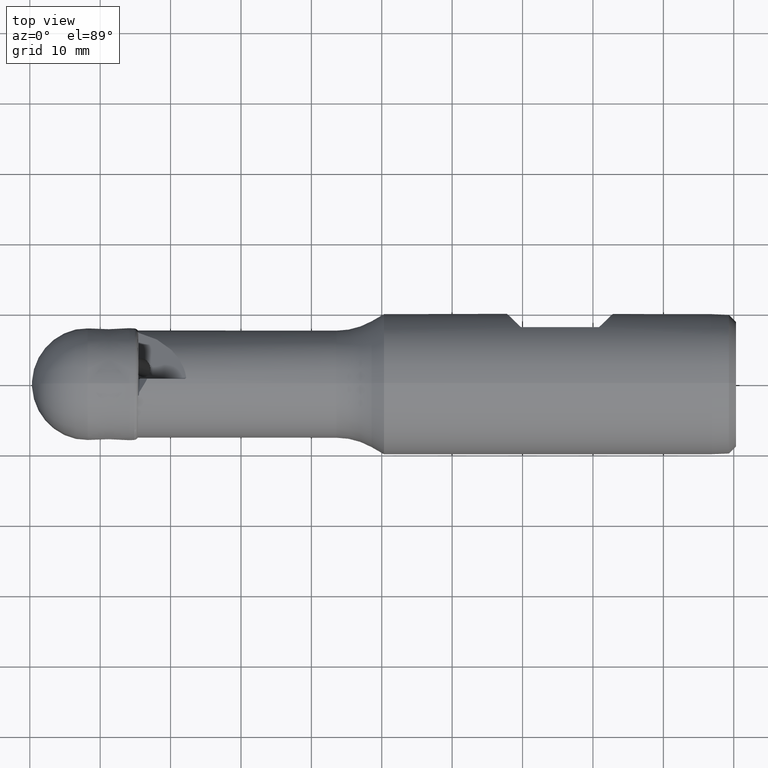
[diagram: clean part render]
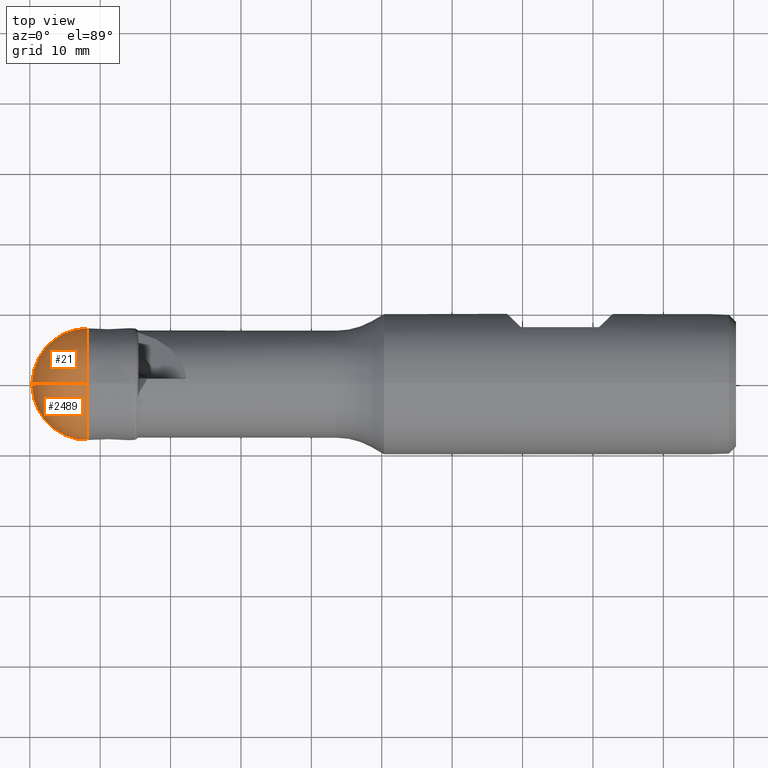
[diagram: same view with one multi-face feature highlighted, each face labeled with its STEP entity id]
A machine part, top view. The highlighted faces form ONE feature: a constant-radius fillet chain: 2 tangent blend faces with common blend radius 7.9786 mm. The faces share edges in the B-rep.
Their STEP definitions:
[1] entity #21 (Torus):
#21 = ADVANCED_FACE ( 'NONE', ( #3005 ), #2590, .T. ) ;
#231 = CARTESIAN_POINT ( 'NONE',  ( 8.282730966501290482, 0.0000000000000000000, 0.0000000000000000000 ) ) ;
#253 = DIRECTION ( 'NONE',  ( -1.000000000000000000, -0.0000000000000000000, -0.0000000000000000000 ) ) ;
#264 = DIRECTION ( 'NONE',  ( -0.0000000000000000000, 1.000000000000000000, 1.224646799147353207E-16 ) ) ;
#299 = AXIS2_PLACEMENT_3D ( 'NONE', #231, #2729, #2487 ) ;
#370 = CARTESIAN_POINT ( 'NONE',  ( 8.239061433749462537, 0.0000000000000000000, 7.964400446483643314 ) ) ;
#428 = DIRECTION ( 'NONE',  ( 0.0000000000000000000, 0.0000000000000000000, 1.000000000000000000 ) ) ;
#539 = CARTESIAN_POINT ( 'NONE',  ( 8.282730966501290482, 0.0000000000000000000, -0.01408443123342688688 ) ) ;
#591 = DIRECTION ( 'NONE',  ( 0.0000000000000000000, -1.000000000000000000, 0.0000000000000000000 ) ) ;
#605 = EDGE_CURVE ( 'NONE', #2495, #1144, #2393, .T. ) ;
#921 = AXIS2_PLACEMENT_3D ( 'NONE', #2552, #264, #1272 ) ;
#1066 = DIRECTION ( 'NONE',  ( 0.0000000000000000000, 0.0000000000000000000, -1.000000000000000000 ) ) ;
#1082 = AXIS2_PLACEMENT_3D ( 'NONE', #2416, #1935, #428 ) ;
#1144 = VERTEX_POINT ( 'NONE', #2737 ) ;
#1236 = CIRCLE ( 'NONE', #1082, 0.4457041864908126705 ) ;
#1269 = AXIS2_PLACEMENT_3D ( 'NONE', #2817, #253, #1486 ) ;
#1272 = DIRECTION ( 'NONE',  ( 0.0000000000000000000, -1.224646799147353207E-16, 1.000000000000000000 ) ) ;
#1280 = VERTEX_POINT ( 'NONE', #2522 ) ;
#1459 = VERTEX_POINT ( 'NONE', #2920 ) ;
#1486 = DIRECTION ( 'NONE',  ( 0.0000000000000000000, 0.0000000000000000000, 1.000000000000000000 ) ) ;
#1497 = AXIS2_PLACEMENT_3D ( 'NONE', #539, #591, #1066 ) ;
#1511 = ORIENTED_EDGE ( 'NONE', *, *, #2446, .F. ) ;
#1559 = EDGE_LOOP ( 'NONE', ( #3226, #2229, #2149, #1511 ) ) ;
#1703 = EDGE_CURVE ( 'NONE', #1144, #1280, #1970, .T. ) ;
#1935 = DIRECTION ( 'NONE',  ( -1.000000000000000000, -0.0000000000000000000, -0.0000000000000000000 ) ) ;
#1970 = CIRCLE ( 'NONE', #921, 7.978604387488499761 ) ;
#2149 = ORIENTED_EDGE ( 'NONE', *, *, #2338, .F. ) ;
#2229 = ORIENTED_EDGE ( 'NONE', *, *, #1703, .T. ) ;
#2338 = EDGE_CURVE ( 'NONE', #1459, #1280, #1236, .T. ) ;
#2393 = CIRCLE ( 'NONE', #1269, 7.964400446483643314 ) ;
#2416 = CARTESIAN_POINT ( 'NONE',  ( 0.3173858767351253607, 0.0000000000000000000, 0.0000000000000000000 ) ) ;
#2446 = EDGE_CURVE ( 'NONE', #2495, #1459, #2527, .T. ) ;
#2487 = DIRECTION ( 'NONE',  ( 0.0000000000000000000, 0.0000000000000000000, 1.000000000000000000 ) ) ;
#2495 = VERTEX_POINT ( 'NONE', #370 ) ;
#2522 = CARTESIAN_POINT ( 'NONE',  ( 0.3173858767351253607, 5.458302053525562359E-17, -0.4457041864908188877 ) ) ;
#2527 = CIRCLE ( 'NONE', #1497, 7.978604387488499761 ) ;
#2552 = CARTESIAN_POINT ( 'NONE',  ( 8.282730966501290482, -1.724845362782724401E-18, 0.01408443123342688688 ) ) ;
#2590 = TOROIDAL_SURFACE ( 'NONE', #299, -0.01408443123342688688, 7.978604387488499761 ) ;
#2729 = DIRECTION ( 'NONE',  ( -1.000000000000000000, -0.0000000000000000000, -0.0000000000000000000 ) ) ;
#2737 = CARTESIAN_POINT ( 'NONE',  ( 8.239061433749462537, 9.753577513913945879E-16, -7.964400446483643314 ) ) ;
#2817 = CARTESIAN_POINT ( 'NONE',  ( 8.239061433749462537, 0.0000000000000000000, 0.0000000000000000000 ) ) ;
#2920 = CARTESIAN_POINT ( 'NONE',  ( 0.3173858767351253607, 0.0000000000000000000, 0.4457041864908188877 ) ) ;
#3005 = FACE_OUTER_BOUND ( 'NONE', #1559, .T. ) ;
#3226 = ORIENTED_EDGE ( 'NONE', *, *, #605, .T. ) ;
[2] entity #2489 (Torus):
#206 = ORIENTED_EDGE ( 'NONE', *, *, #937, .F. ) ;
#264 = DIRECTION ( 'NONE',  ( -0.0000000000000000000, 1.000000000000000000, 1.224646799147353207E-16 ) ) ;
#370 = CARTESIAN_POINT ( 'NONE',  ( 8.239061433749462537, 0.0000000000000000000, 7.964400446483643314 ) ) ;
#492 = ORIENTED_EDGE ( 'NONE', *, *, #1703, .F. ) ;
#533 = AXIS2_PLACEMENT_3D ( 'NONE', #1005, #2237, #1772 ) ;
#535 = CIRCLE ( 'NONE', #533, 0.4457041864908126705 ) ;
#539 = CARTESIAN_POINT ( 'NONE',  ( 8.282730966501290482, 0.0000000000000000000, -0.01408443123342688688 ) ) ;
#591 = DIRECTION ( 'NONE',  ( 0.0000000000000000000, -1.000000000000000000, 0.0000000000000000000 ) ) ;
#829 = TOROIDAL_SURFACE ( 'NONE', #1085, -0.01408443123342688688, 7.978604387488499761 ) ;
#921 = AXIS2_PLACEMENT_3D ( 'NONE', #2552, #264, #1272 ) ;
#937 = EDGE_CURVE ( 'NONE', #1280, #1459, #535, .T. ) ;
#1005 = CARTESIAN_POINT ( 'NONE',  ( 0.3173858767351253607, 0.0000000000000000000, 0.0000000000000000000 ) ) ;
#1050 = DIRECTION ( 'NONE',  ( -1.000000000000000000, -0.0000000000000000000, -0.0000000000000000000 ) ) ;
#1066 = DIRECTION ( 'NONE',  ( 0.0000000000000000000, 0.0000000000000000000, -1.000000000000000000 ) ) ;
#1085 = AXIS2_PLACEMENT_3D ( 'NONE', #1143, #3171, #2916 ) ;
#1095 = FACE_OUTER_BOUND ( 'NONE', #2365, .T. ) ;
#1119 = CARTESIAN_POINT ( 'NONE',  ( 8.239061433749462537, 0.0000000000000000000, 0.0000000000000000000 ) ) ;
#1127 = ORIENTED_EDGE ( 'NONE', *, *, #2446, .T. ) ;
#1143 = CARTESIAN_POINT ( 'NONE',  ( 8.282730966501290482, 0.0000000000000000000, 0.0000000000000000000 ) ) ;
#1144 = VERTEX_POINT ( 'NONE', #2737 ) ;
#1272 = DIRECTION ( 'NONE',  ( 0.0000000000000000000, -1.224646799147353207E-16, 1.000000000000000000 ) ) ;
#1280 = VERTEX_POINT ( 'NONE', #2522 ) ;
#1459 = VERTEX_POINT ( 'NONE', #2920 ) ;
#1497 = AXIS2_PLACEMENT_3D ( 'NONE', #539, #591, #1066 ) ;
#1544 = ORIENTED_EDGE ( 'NONE', *, *, #2795, .T. ) ;
#1703 = EDGE_CURVE ( 'NONE', #1144, #1280, #1970, .T. ) ;
#1772 = DIRECTION ( 'NONE',  ( 0.0000000000000000000, 0.0000000000000000000, 1.000000000000000000 ) ) ;
#1970 = CIRCLE ( 'NONE', #921, 7.978604387488499761 ) ;
#2137 = CIRCLE ( 'NONE', #2348, 7.964400446483643314 ) ;
#2237 = DIRECTION ( 'NONE',  ( -1.000000000000000000, -0.0000000000000000000, -0.0000000000000000000 ) ) ;
#2335 = DIRECTION ( 'NONE',  ( 0.0000000000000000000, 0.0000000000000000000, 1.000000000000000000 ) ) ;
#2348 = AXIS2_PLACEMENT_3D ( 'NONE', #1119, #1050, #2335 ) ;
#2365 = EDGE_LOOP ( 'NONE', ( #492, #1544, #1127, #206 ) ) ;
#2446 = EDGE_CURVE ( 'NONE', #2495, #1459, #2527, .T. ) ;
#2489 = ADVANCED_FACE ( 'NONE', ( #1095 ), #829, .T. ) ;
#2495 = VERTEX_POINT ( 'NONE', #370 ) ;
#2522 = CARTESIAN_POINT ( 'NONE',  ( 0.3173858767351253607, 5.458302053525562359E-17, -0.4457041864908188877 ) ) ;
#2527 = CIRCLE ( 'NONE', #1497, 7.978604387488499761 ) ;
#2552 = CARTESIAN_POINT ( 'NONE',  ( 8.282730966501290482, -1.724845362782724401E-18, 0.01408443123342688688 ) ) ;
#2737 = CARTESIAN_POINT ( 'NONE',  ( 8.239061433749462537, 9.753577513913945879E-16, -7.964400446483643314 ) ) ;
#2795 = EDGE_CURVE ( 'NONE', #1144, #2495, #2137, .T. ) ;
#2916 = DIRECTION ( 'NONE',  ( 0.0000000000000000000, 0.0000000000000000000, 1.000000000000000000 ) ) ;
#2920 = CARTESIAN_POINT ( 'NONE',  ( 0.3173858767351253607, 0.0000000000000000000, 0.4457041864908188877 ) ) ;
#3171 = DIRECTION ( 'NONE',  ( -1.000000000000000000, -0.0000000000000000000, -0.0000000000000000000 ) ) ;